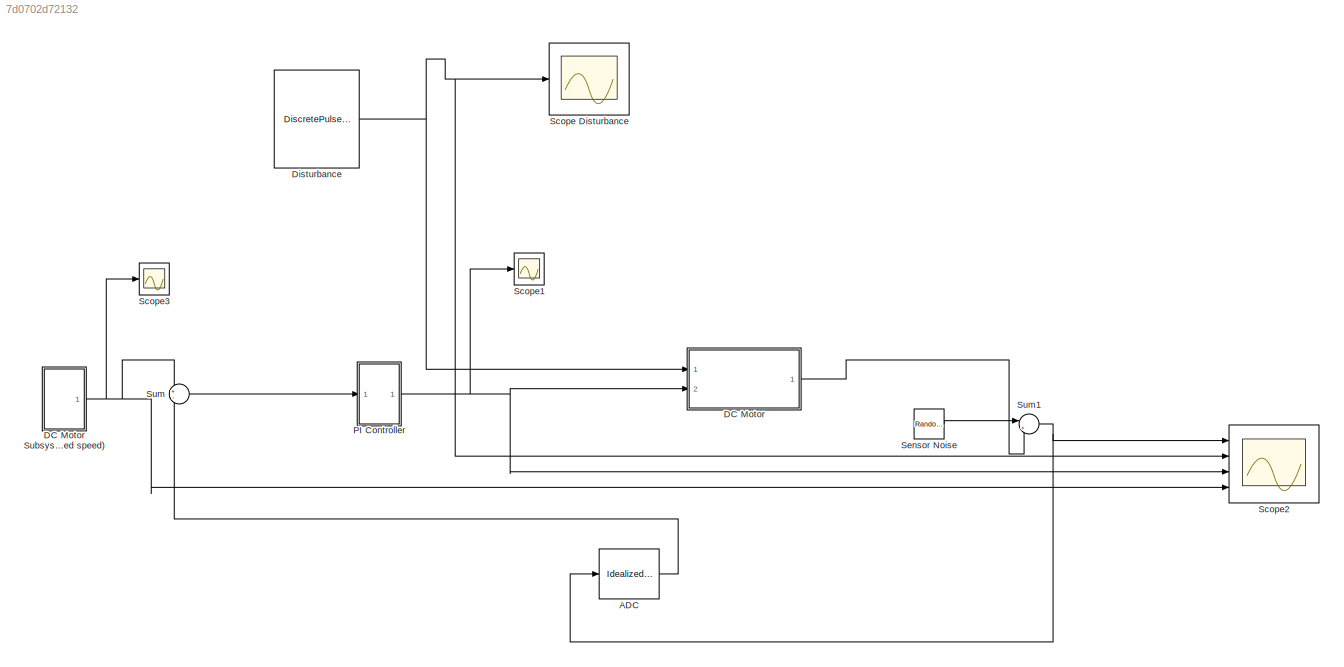
MODEL slx_7d0702d72132
KIND model
CONFIG AbsTol = auto
CONFIG EnableMultiTasking = off
CONFIG FixedStep = auto
CONFIG MaxStep = auto
CONFIG MinStep = auto
CONFIG PreLoadFcn = kp=100\nki=50\nLa=20\nRa=30\nKv=40\nBm=60\nJ=10\nKt=10
CONFIG RelTol = 1e-3
CONFIG SampleTimeConstraint = Unconstrained
CONFIG SolverName = ode45
CONFIG StartTime = 0.0
CONFIG StopTime = 10.0
WORKSPACE source: mxarray member
WORKSPACE K = 50
BLOCK [Reference] ADC  REF=simulink_extras/Additional
Discrete/Idealized ADC quantizer
  AttributesFormatString = (settings: %<NumberOfConverterBits>-bit converter\nVmin: %<Vmin>, Vmax: %<Vmax>)
  Ports = [1, 1]
  SourceBlock = simulink_extras/Additional\nDiscrete/Idealized ADC quantizer
  SourceProductBaseCode = SL
  SourceType = IdealADC
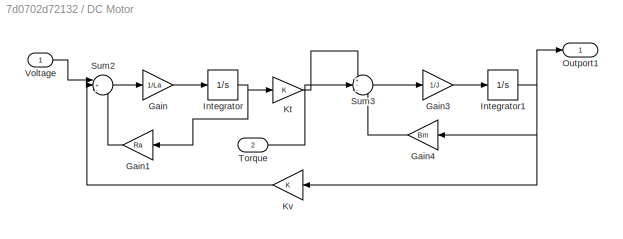
BLOCK [SubSystem] DC Motor
  Ports = [2, 1]
  RequestExecContextInheritance = off
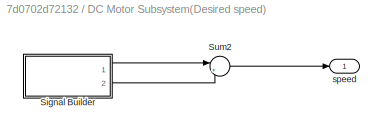
BLOCK [SubSystem] DC Motor Subsystem(Desired speed)
  Ports = [0, 1]
  RequestExecContextInheritance = off
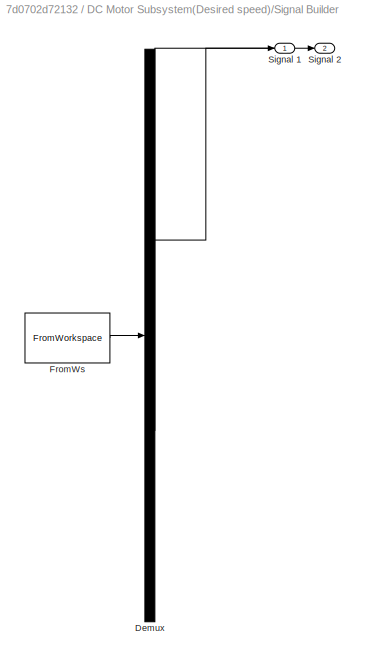
BLOCK [SubSystem] DC Motor Subsystem(Desired speed)/Signal Builder
  ClipboardFcn = sigbuilder_block('clipboard');
  CloseFcn = sigbuilder_block('close');
  ContinueFcn = sigbuilder_block('continue');
  CopyFcn = sigbuilder_block('copy');
  DeleteFcn = sigbuilder_block('delete');
  LoadFcn = sigbuilder_block('load');
  MaskHideContents = on
  ModelCloseFcn = sigbuilder_block('modelClose');
  NameChangeFcn = sigbuilder_block('namechange');
  OpenFcn = sigbuilder_block('open',[437.6 199.2 550.4 400 ]);
  PauseFcn = sigbuilder_block('pause');
  Ports = [0, 2]
  PreSaveFcn = sigbuilder_block('preSave');
  RequestExecContextInheritance = off
  StartFcn = sigbuilder_block('start');
  StopFcn = sigbuilder_block('stop');
  Tag = STV Subsys
BLOCK [Demux] DC Motor Subsystem(Desired speed)/Signal Builder/Demux
  DisplayOption = none
  Outputs = 2
  Ports = [1, 2]
  Tag = STV Demux
BLOCK [FromWorkspace] DC Motor Subsystem(Desired speed)/Signal Builder/FromWs
  Tag = STV FromWs
  VariableName = tuvar
BLOCK [Outport] DC Motor Subsystem(Desired speed)/Signal Builder/Signal 1
  Tag = STV Outport
BLOCK [Outport] DC Motor Subsystem(Desired speed)/Signal Builder/Signal 2
  Port = 2
  Tag = STV Outport
BLOCK [Sum] DC Motor Subsystem(Desired speed)/Sum2
  Inputs = |++
  Ports = [2, 1]
BLOCK [Outport] DC Motor Subsystem(Desired speed)/speed
BLOCK [Gain] DC Motor/Gain
  Gain = 1/La
BLOCK [Gain] DC Motor/Gain1
  Gain = Ra
  NameLocation = top
BLOCK [Gain] DC Motor/Gain3
  Gain = 1/J
BLOCK [Gain] DC Motor/Gain4
  Gain = Bm
BLOCK [Integrator] DC Motor/Integrator
  Ports = [1, 1]
BLOCK [Integrator] DC Motor/Integrator1
  Ports = [1, 1]
BLOCK [Gain] DC Motor/Kt
  Gain = K
BLOCK [Gain] DC Motor/Kv
BLOCK [Outport] DC Motor/Outport1
BLOCK [Sum] DC Motor/Sum2
  Inputs = |+--
  Ports = [3, 1]
BLOCK [Sum] DC Motor/Sum3
  Inputs = +--
  Ports = [3, 1]
BLOCK [Inport] DC Motor/Torque
  Port = 2
BLOCK [Inport] DC Motor/Voltage
BLOCK [DiscretePulseGenerator] Disturbance
  Period = 10
  Ports = [0, 1]
  PulseType = Time based
  PulseWidth = 5
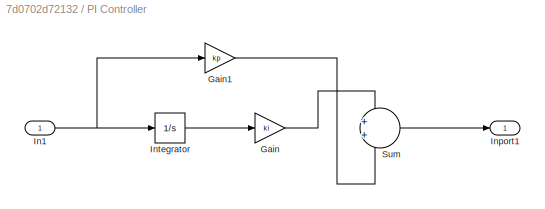
BLOCK [SubSystem] PI Controller
  Ports = [1, 1]
  RequestExecContextInheritance = off
BLOCK [Gain] PI Controller/Gain
  Gain = ki
BLOCK [Gain] PI Controller/Gain1
  Gain = kp
BLOCK [Inport] PI Controller/In1
BLOCK [Outport] PI Controller/Inport1
BLOCK [Integrator] PI Controller/Integrator
  Ports = [1, 1]
BLOCK [Sum] PI Controller/Sum
  Ports = [2, 1]
BLOCK [Scope] Scope Disturbance
  Floating = off
  NumInputPorts = 1
  Ports = [1]
  ScopeSpecificationString = Simulink.scopes.TimeScopeBlockCfg('CurrentConfiguration', extmgr.ConfigurationSet(extmgr.Configuration('Core','General UI',true),extmgr.Configuration('Core','Source UI',true),extmgr.Configuration('Sources','WiredSimulink',true,'DataLoggingVariableName','ScopeData1'),extmgr.Configuration('Visuals','Time Domain',true),extmgr.Configuration('Tools','Plot Navigation',true),extmgr.Configuration('Tools',...<+40ch>
BLOCK [Scope] Scope1
  Floating = off
  NumInputPorts = 1
  Ports = [1]
  ScopeSpecificationString = Simulink.scopes.TimeScopeBlockCfg('CurrentConfiguration', extmgr.ConfigurationSet(extmgr.Configuration('Core','General UI',true),extmgr.Configuration('Core','Source UI',true),extmgr.Configuration('Sources','WiredSimulink',true,'DataLoggingVariableName','ScopeData2'),extmgr.Configuration('Visuals','Time Domain',true),extmgr.Configuration('Tools','Plot Navigation',true),extmgr.Configuration('Tools',...<+40ch>
BLOCK [Scope] Scope2
  Floating = off
  NumInputPorts = 4
  Ports = [4]
  ScopeSpecificationString = Simulink.scopes.TimeScopeBlockCfg('CurrentConfiguration', extmgr.ConfigurationSet(extmgr.Configuration('Core','General UI',true),extmgr.Configuration('Core','Source UI',true),extmgr.Configuration('Sources','WiredSimulink',true,'DataLoggingVariableName','ScopeData3'),extmgr.Configuration('Visuals','Time Domain',true,'SerializedDisplays',{struct('MinYLimReal','-8052.32191','MaxYLimReal','72482.5467'...<+3494ch>
BLOCK [Scope] Scope3
  Floating = off
  NumInputPorts = 1
  Ports = [1]
  ScopeSpecificationString = Simulink.scopes.TimeScopeBlockCfg('CurrentConfiguration', extmgr.ConfigurationSet(extmgr.Configuration('Core','General UI',true),extmgr.Configuration('Core','Source UI',true),extmgr.Configuration('Sources','WiredSimulink',true),extmgr.Configuration('Visuals','Time Domain',true),extmgr.Configuration('Tools','Plot Navigation',true),extmgr.Configuration('Tools','Measurements',true)),'Version','2021a'...<+1ch>
BLOCK [RandomNumber] Sensor Noise
  SampleTime = 0.1
BLOCK [Sum] Sum
  Inputs = +-
  Ports = [2, 1]
BLOCK [Sum] Sum1
  Inputs = |++
  Ports = [2, 1]
LINE ADC:1 -> Sum:2
LINE DC Motor Subsystem(Desired speed)/Signal Builder:1 -> DC Motor Subsystem(Desired speed)/Sum2:1
LINE DC Motor Subsystem(Desired speed)/Signal Builder:2 -> DC Motor Subsystem(Desired speed)/Sum2:2
LINE DC Motor Subsystem(Desired speed)/Sum2:1 -> DC Motor Subsystem(Desired speed)/speed:1
NET DC Motor Subsystem(Desired speed):1 -> Scope2:4, Scope3:1, Sum:1
LINE DC Motor/Gain1:1 -> DC Motor/Sum2:3
LINE DC Motor/Gain3:1 -> DC Motor/Integrator1:1
LINE DC Motor/Gain4:1 -> DC Motor/Sum3:3
LINE DC Motor/Gain:1 -> DC Motor/Integrator:1
NET DC Motor/Integrator1:1 -> DC Motor/Gain4:1, DC Motor/Kv:1, DC Motor/Outport1:1
NET DC Motor/Integrator:1 -> DC Motor/Gain1:1, DC Motor/Kt:1
LINE DC Motor/Kt:1 -> DC Motor/Sum3:1
LINE DC Motor/Kv:1 -> DC Motor/Sum2:2
LINE DC Motor/Sum2:1 -> DC Motor/Gain:1
LINE DC Motor/Sum3:1 -> DC Motor/Gain3:1
LINE DC Motor/Torque:1 -> DC Motor/Sum3:2
LINE DC Motor/Voltage:1 -> DC Motor/Sum2:1
LINE DC Motor:1 -> Sum1:2
NET Disturbance:1 -> DC Motor:1, Scope Disturbance:1, Scope2:2
LINE PI Controller/Gain1:1 -> PI Controller/Sum:2
LINE PI Controller/Gain:1 -> PI Controller/Sum:1
NET PI Controller/In1:1 -> PI Controller/Gain1:1, PI Controller/Integrator:1
LINE PI Controller/Integrator:1 -> PI Controller/Gain:1
LINE PI Controller/Sum:1 -> PI Controller/Inport1:1
NET PI Controller:1 -> DC Motor:2, Scope1:1, Scope2:3
LINE Sensor Noise:1 -> Sum1:1
NET Sum1:1 -> ADC:1, Scope2:1
LINE Sum:1 -> PI Controller:1
note: NET lines group one-source signal fan-out (src -> all destinations, sorted); 1:1 wires keep LINE
